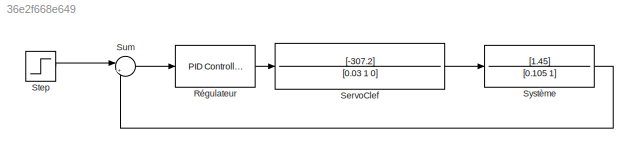
MODEL slx_36e2f668e649
KIND model
CONFIG AbsTol = auto
CONFIG EnableMultiTasking = off
CONFIG FixedStep = auto
CONFIG MaxStep = auto
CONFIG MinStep = auto
CONFIG RelTol = 1e-3
CONFIG SampleTimeConstraint = Unconstrained
CONFIG Solver = VariableStepAuto
CONFIG SolverName = VariableStepAuto
CONFIG StartTime = 0.0
CONFIG StopTime = 10.0
BLOCK [Reference] Régulateur  REF=simulink/Continuous/PID Controller
  Ports = [1, 1]
  SourceBlock = simulink/Continuous/PID Controller
  SourceProductBaseCode = SL
  SourceProductName = Simulink
  SourceType = PID 1dof
BLOCK [TransferFcn] ServoClef
  Denominator = [0.03 1 0]
  Numerator = [-307.2]
BLOCK [Step] Step
  After = 65
  Before = 60
  SampleTime = 0
BLOCK [Sum] Sum
  IconShape = round
  InputSameDT = off
  Inputs = |+-
  OutDataTypeStr = Inherit: Inherit via internal rule
  Ports = [2, 1]
  SaturateOnIntegerOverflow = off
BLOCK [TransferFcn] Système
  Denominator = [0.105 1]
  Numerator = [1.45]
LINE Régulateur:1 -> ServoClef:1
LINE ServoClef:1 -> Système:1
LINE Step:1 -> Sum:1
LINE Sum:1 -> Régulateur:1
LINE Système:1 -> Sum:2
